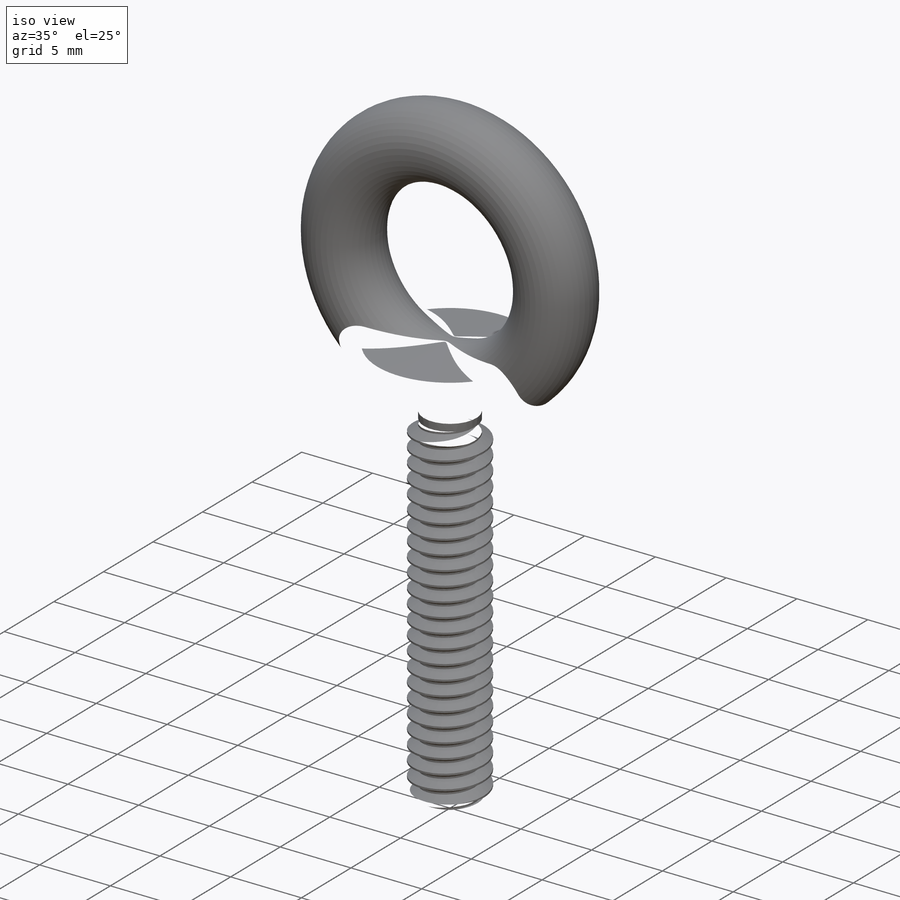
[diagram: iso view]
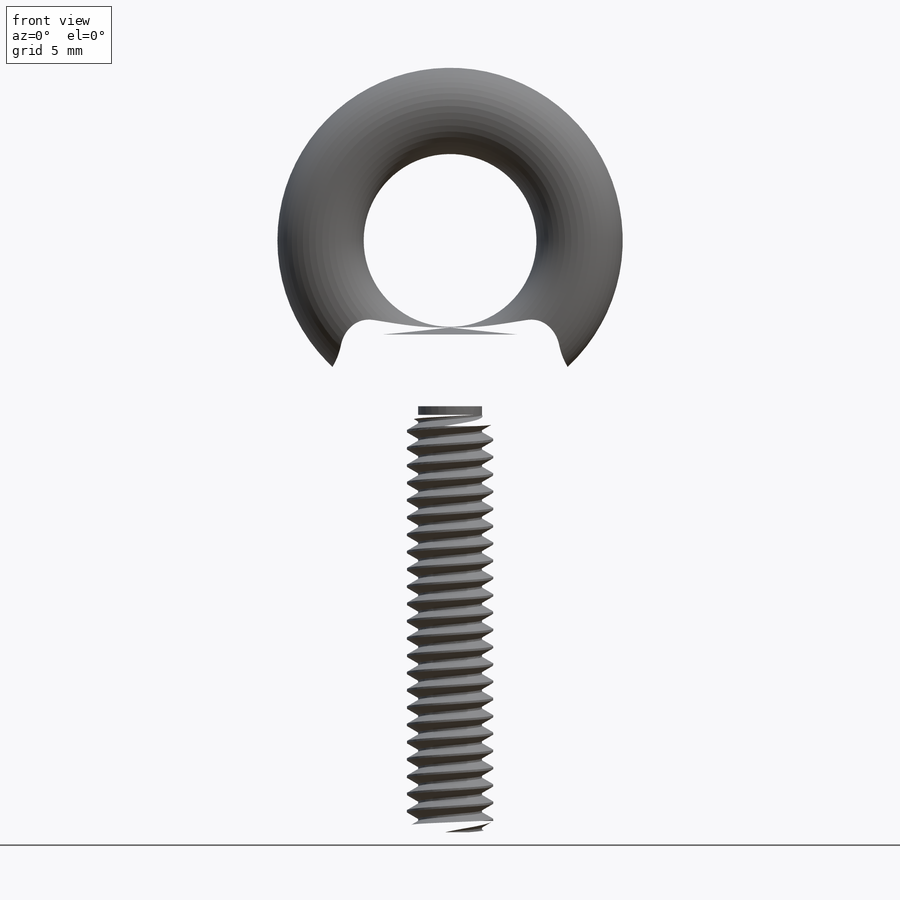
[diagram: front view]
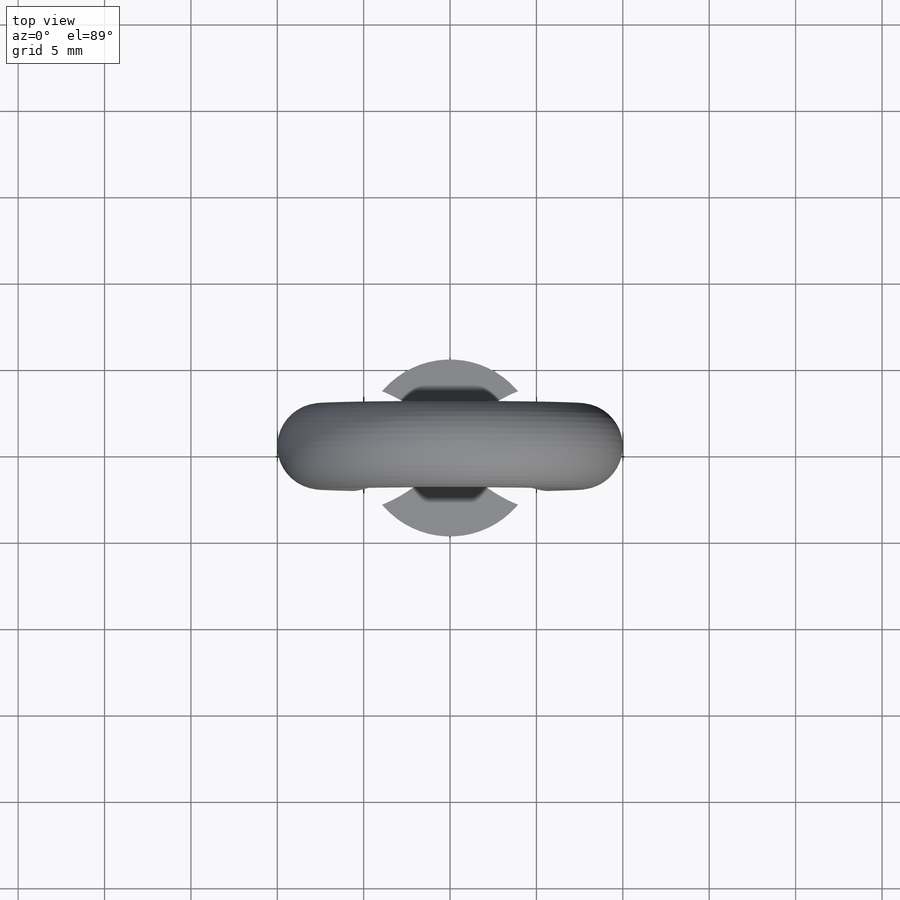
[diagram: top view]
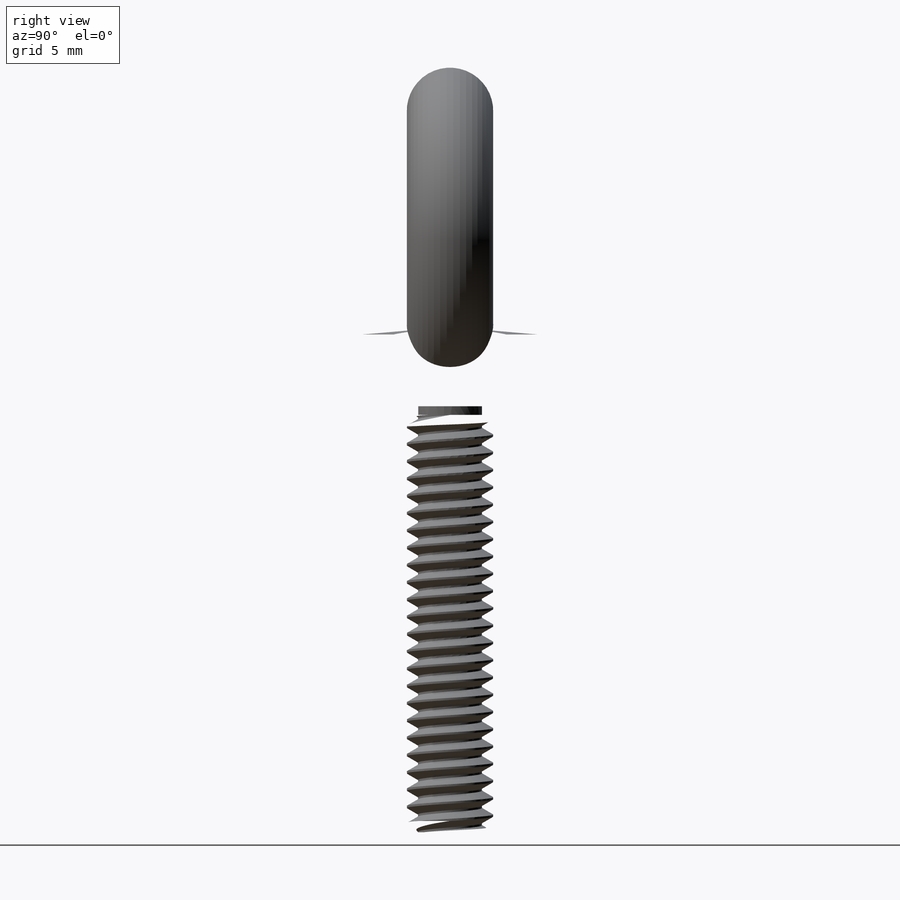
[diagram: right view]
SOLIDWORKS PART (.sldprt)
format: sldprt  version: not decoded by parser v0  size: 973,312 bytes
history: native  units: mm
features: sketch x10, revolve x2, material x1, fillet x1, helix x1, sweep x1, cut_revolve x1 (+13 scaffold rows collapsed)
feature tree (30):
  scaffold x13  (default folders/planes/origin — collapsed)
  material  "Material <not specified>"
  sketch  "Sketch1"  dims[c1.D1=~13.65547mm c1.D2=~13.65547mm c2.D1=5.0mm c2.D3=5.0mm c2.Eye OD=20.0mm c2.Eye ID=10.0mm]
  revolve  "Revolve1"  Angle=360deg
  sketch  "Sketch3"  dims[c1.D1=~34.13125mm c1.D2=~3.637366mm c1.D3=0.26mm c1.Shoulder Dia=13.0mm c1.Thread Dia=5.0mm c1.Overall Length=45.0mm c1.Shank Length=25.4mm c2.D1=84.0mm c3.D1=85.0deg c3.D2=~11.639595mm c4.D2=85.0deg]
  revolve  "Revolve2"  Angle=360deg
  fillet  "Fillet1"  Radius=1.25mm
  sketch  "Sketch8"
  helix  "Helix/Spiral1"  Pitch=27.4mm pitch=1mm
  sketch  "Sketch9"  dims[c1.D1=~4.141508mm c2.D1=60.0deg c2.D2=0.125mm c2.D3=0.5mm]
  sweep  "Cut-Sweep1"
  sketch  "Sketch12"
  sketch  "Sketch11"  dims[c1.D1=~2.446277mm c2.D1=45.0deg c2.D2=0.5mm c2.D3=~8.232137mm c3.D3=45.0deg c3.D4=0.75mm]
  cut_revolve  "Cut-Revolve5"  Angle=360deg
  sketch  "Sketch7"
  sketch  "Sketch13"
  sketch  "Sketch14"  dims[D1=5.0mm]
  sketch  "Sketch15"  dims[D1=5.5mm]
decode coverage: 11 of 16 modeling features carry decoded parameters
note: ~ marks probable driven/reference dimensions
note: suppression state not decoded; provenance and decode notes live in map.json
